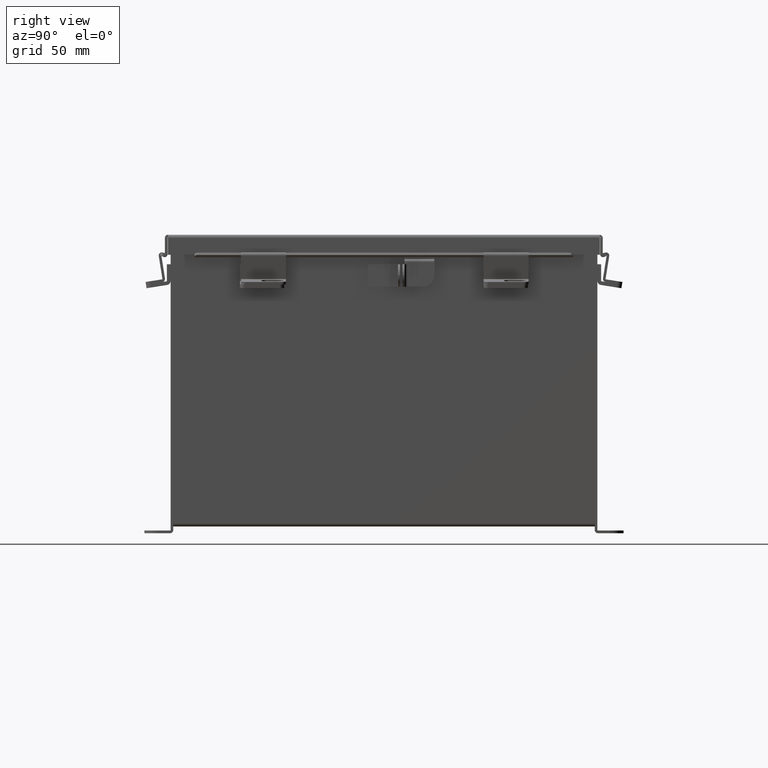
[diagram: clean part render]
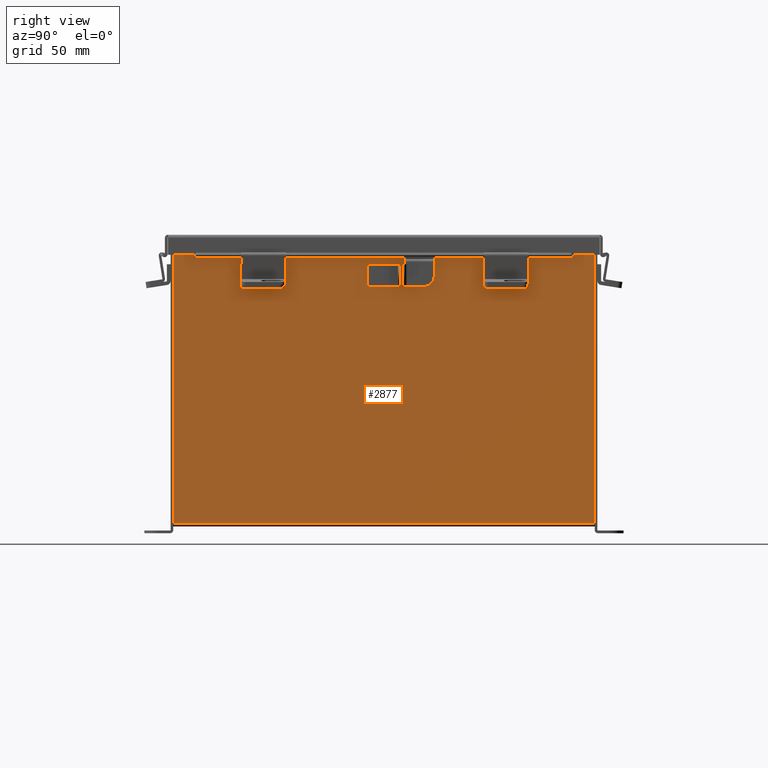
[diagram: same view with one face highlighted and labeled with its STEP entity id]
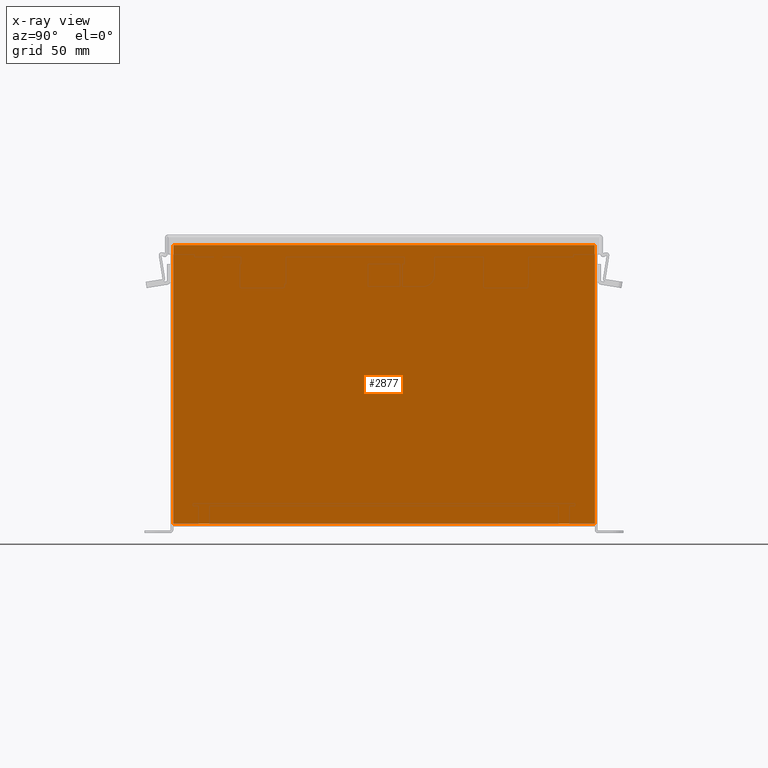
[diagram: x-ray of the same camera — body ghosted, the highlighted face saturated]
A machine part, right view. The second image highlights one B-rep face of the part: STEP entity #2877.
The next image is the same camera in x-ray: the body ghosted, the highlighted face saturated — about 0% of this face is hidden behind the body in this view.
In plain terms, the highlighted planar face has unit normal (-1, 0, 0).
Its self-contained STEP definition (entity closure, byte-faithful):
#220 = CARTESIAN_POINT ( 'NONE',  ( 6.000000000000002700, 0.0000000000000000000, -2.113767385097723700E-014 ) ) ;
#660 = DIRECTION ( 'NONE',  ( 3.479795166820705900E-015, 0.0000000000000000000, 1.000000000000000000 ) ) ;
#1794 = DIRECTION ( 'NONE',  ( -1.000000000000000000, 0.0000000000000000000, 3.479795166820705900E-015 ) ) ;
#2877 = ADVANCED_FACE ( 'NONE', ( #5563 ), #2879, .F. ) ;
#2879 = PLANE ( 'NONE',  #6583 ) ;
#3199 = CARTESIAN_POINT ( 'NONE',  ( 6.000000000000030200, 5.925299999999997300, 7.837599999999999200 ) ) ;
#3219 = LINE ( 'NONE', #8828, #16600 ) ;
#3553 = VERTEX_POINT ( 'NONE', #3199 ) ;
#3606 = VECTOR ( 'NONE', #16746, 39.37007874015748100 ) ;
#3615 = VERTEX_POINT ( 'NONE', #4715 ) ;
#4715 = CARTESIAN_POINT ( 'NONE',  ( 6.000000000000002700, 5.925299999999998200, 0.01299999999999984300 ) ) ;
#4953 = CARTESIAN_POINT ( 'NONE',  ( 6.000000000000002700, -5.925300000000000000, 0.01299999999999984300 ) ) ;
#5563 = FACE_OUTER_BOUND ( 'NONE', #17218, .T. ) ;
#5737 = EDGE_CURVE ( 'NONE', #3553, #12957, #16872, .T. ) ;
#6231 = DIRECTION ( 'NONE',  ( 3.479795166820706300E-015, -1.391918066728282600E-016, 1.000000000000000000 ) ) ;
#6265 = VECTOR ( 'NONE', #10270, 39.37007874015748100 ) ;
#6271 = CARTESIAN_POINT ( 'NONE',  ( 6.000000000000030200, 5.925299999999998200, 7.837599999999999200 ) ) ;
#6583 = AXIS2_PLACEMENT_3D ( 'NONE', #220, #1794, #660 ) ;
#6810 = VERTEX_POINT ( 'NONE', #15644 ) ;
#7022 = EDGE_CURVE ( 'NONE', #3615, #3553, #3219, .T. ) ;
#7074 = CARTESIAN_POINT ( 'NONE',  ( 6.000000000000002700, -5.925300000000000000, -2.113767385097723700E-014 ) ) ;
#7726 = DIRECTION ( 'NONE',  ( -0.0000000000000000000, -1.000000000000000000, -0.0000000000000000000 ) ) ;
#8828 = CARTESIAN_POINT ( 'NONE',  ( 6.000000000000002700, 5.925300000000000000, -2.031811945287795800E-014 ) ) ;
#10270 = DIRECTION ( 'NONE',  ( -0.0000000000000000000, -1.000000000000000000, -0.0000000000000000000 ) ) ;
#10938 = ORIENTED_EDGE ( 'NONE', *, *, #5737, .T. ) ;
#11820 = ORIENTED_EDGE ( 'NONE', *, *, #14876, .T. ) ;
#12370 = VECTOR ( 'NONE', #7726, 39.37007874015748100 ) ;
#12957 = VERTEX_POINT ( 'NONE', #16669 ) ;
#13138 = ORIENTED_EDGE ( 'NONE', *, *, #7022, .T. ) ;
#13754 = ORIENTED_EDGE ( 'NONE', *, *, #17380, .F. ) ;
#14189 = LINE ( 'NONE', #7074, #3606 ) ;
#14876 = EDGE_CURVE ( 'NONE', #12957, #6810, #14189, .T. ) ;
#15644 = CARTESIAN_POINT ( 'NONE',  ( 6.000000000000002700, -5.925300000000000000, 0.01299999999999984300 ) ) ;
#16065 = LINE ( 'NONE', #4953, #12370 ) ;
#16600 = VECTOR ( 'NONE', #6231, 39.37007874015748100 ) ;
#16669 = CARTESIAN_POINT ( 'NONE',  ( 6.000000000000030200, -5.925300000000000000, 7.837599999999999200 ) ) ;
#16746 = DIRECTION ( 'NONE',  ( -3.479795166820706300E-015, 0.0000000000000000000, -1.000000000000000000 ) ) ;
#16872 = LINE ( 'NONE', #6271, #6265 ) ;
#17218 = EDGE_LOOP ( 'NONE', ( #10938, #11820, #13754, #13138 ) ) ;
#17380 = EDGE_CURVE ( 'NONE', #3615, #6810, #16065, .T. ) ;